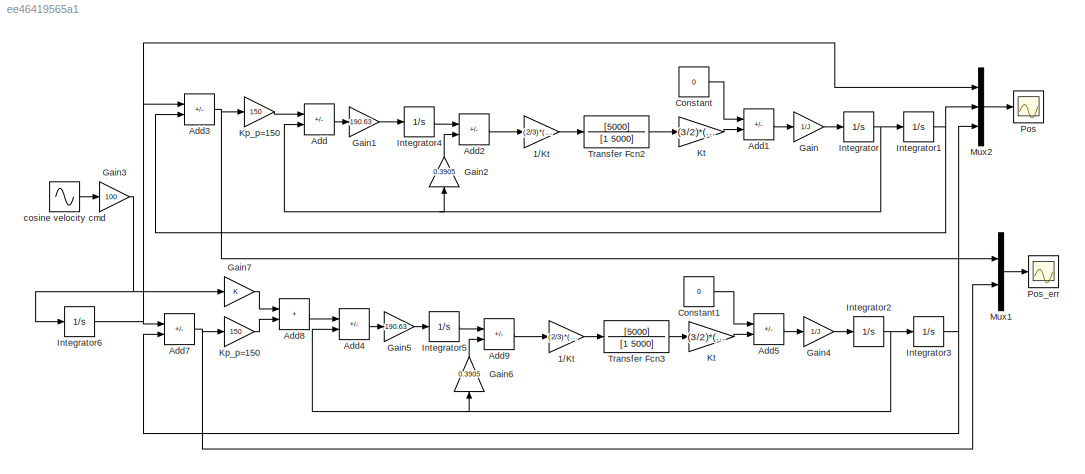
MODEL slx_ee46419565a1
KIND model
CONFIG AbsTol = auto
CONFIG EnableMultiTasking = off
CONFIG FixedStep = auto
CONFIG MaxStep = auto
CONFIG MinStep = auto
CONFIG RelTol = 1e-3
CONFIG SampleTimeConstraint = Unconstrained
CONFIG SolverName = VariableStepAuto
CONFIG StartTime = 0.0
CONFIG StopTime = 2
BLOCK [Gain] 1//Kt 
  Gain = (2/3)*(2/4)*(1/0.03)
BLOCK [Gain] 1//Kt  
  Gain = (2/3)*(2/4)*(1/0.03)
BLOCK [Sum] Add
  IconShape = rectangular
  Inputs = +-
BLOCK [Sum] Add1
  IconShape = rectangular
  Inputs = -+
BLOCK [Sum] Add2
  IconShape = rectangular
  Inputs = +-
BLOCK [Sum] Add3
  IconShape = rectangular
  Inputs = +-
BLOCK [Sum] Add4
  IconShape = rectangular
  Inputs = +-
BLOCK [Sum] Add5
  IconShape = rectangular
  Inputs = -+
BLOCK [Sum] Add7
  IconShape = rectangular
  Inputs = +-
BLOCK [Sum] Add8
  IconShape = rectangular
BLOCK [Sum] Add9
  IconShape = rectangular
  Inputs = +-
BLOCK [Constant] Constant
  Value = 0
BLOCK [Constant] Constant1
  Value = 0
BLOCK [Gain] Gain
  Gain = 1/J
BLOCK [Gain] Gain1
  Gain = 190.63
BLOCK [Gain] Gain2
  Gain = 0.3905
  NameLocation = right
BLOCK [Gain] Gain3
  Gain = 100
BLOCK [Gain] Gain4
  Gain = 1/J
BLOCK [Gain] Gain5
  Gain = 190.63
BLOCK [Gain] Gain6
  Gain = 0.3905
  NameLocation = right
BLOCK [Gain] Gain7
BLOCK [Integrator] Integrator
BLOCK [Integrator] Integrator1
BLOCK [Integrator] Integrator2
BLOCK [Integrator] Integrator3
BLOCK [Integrator] Integrator4
BLOCK [Integrator] Integrator5
BLOCK [Integrator] Integrator6
BLOCK [Gain] Kp_p=150
  Gain = 150
BLOCK [Gain] Kp_p=150 
  Gain = 150
BLOCK [Gain] Kt 
  Gain = (3/2)*(4/2)*0.03
BLOCK [Gain] Kt  
  Gain = (3/2)*(4/2)*0.03
BLOCK [Mux] Mux1
  DisplayOption = bar
  Inputs = 2
BLOCK [Mux] Mux2
  DisplayOption = bar
  Inputs = 3
BLOCK [Scope] Pos
  Floating = off
  NumInputPorts = 1
  ScopeSpecificationString = Simulink.scopes.TimeScopeBlockCfg('CurrentConfiguration', extmgr.ConfigurationSet(extmgr.Configuration('Core','General UI',true,'FigureColor',[1 1 1]),extmgr.Configuration('Core','Source UI',true),extmgr.Configuration('Sources','WiredSimulink',true,'DataLoggingVariableName','ScopeData1'),extmgr.Configuration('Visuals','Time Domain',true,'SerializedDisplays',{struct('MinYLimReal','-1.99912','MaxYLi...<+1958ch>
BLOCK [Scope] Pos_err
  Floating = off
  NumInputPorts = 1
  ScopeSpecificationString = Simulink.scopes.TimeScopeBlockCfg('CurrentConfiguration', extmgr.ConfigurationSet(extmgr.Configuration('Core','General UI',true,'FigureColor',[1 1 1]),extmgr.Configuration('Core','Source UI',true),extmgr.Configuration('Sources','WiredSimulink',true,'DataLoggingVariableName','ScopeData1'),extmgr.Configuration('Visuals','Time Domain',true,'SerializedDisplays',{struct('MinYLimReal','-0.82735','MaxYLi...<+1926ch>
BLOCK [TransferFcn] Transfer Fcn2
  Denominator = [1 5000]
  Numerator = [5000]
BLOCK [TransferFcn] Transfer Fcn3
  Denominator = [1 5000]
  Numerator = [5000]
BLOCK [Sin] cosine velocity cmd
  Frequency = 2*pi*5
  Phase = pi/2
  SampleTime = 0
LINE 1//Kt  :1 -> Transfer Fcn3:1
LINE 1//Kt :1 -> Transfer Fcn2:1
LINE Add1:1 -> Gain:1
LINE Add2:1 -> 1//Kt :1
NET Add3:1 -> Kp_p=150:1, Mux1:1
LINE Add4:1 -> Gain5:1
LINE Add5:1 -> Gain4:1
NET Add7:1 -> Kp_p=150 :1, Mux1:2
LINE Add8:1 -> Add4:1
LINE Add9:1 -> 1//Kt  :1
LINE Add:1 -> Gain1:1
LINE Constant1:1 -> Add5:1
LINE Constant:1 -> Add1:1
LINE Gain1:1 -> Integrator4:1
LINE Gain2:1 -> Add2:2
NET Gain3:1 -> Gain7:1, Integrator6:1
LINE Gain4:1 -> Integrator2:1
LINE Gain5:1 -> Integrator5:1
LINE Gain6:1 -> Add9:2
LINE Gain7:1 -> Add8:1
LINE Gain:1 -> Integrator:1
NET Integrator1:1 -> Add3:2, Mux2:2
NET Integrator2:1 -> Add4:2, Gain6:1, Integrator3:1
NET Integrator3:1 -> Add7:2, Mux2:3
LINE Integrator4:1 -> Add2:1
LINE Integrator5:1 -> Add9:1
NET Integrator6:1 -> Add3:1, Add7:1, Mux2:1
NET Integrator:1 -> Add:2, Gain2:1, Integrator1:1
LINE Kp_p=150 :1 -> Add8:2
LINE Kp_p=150:1 -> Add:1
LINE Kt  :1 -> Add5:2
LINE Kt :1 -> Add1:2
LINE Mux1:1 -> Pos_err:1
LINE Mux2:1 -> Pos:1
LINE Transfer Fcn2:1 -> Kt :1
LINE Transfer Fcn3:1 -> Kt  :1
LINE cosine velocity cmd:1 -> Gain3:1
note: NET lines group one-source signal fan-out (src -> all destinations, sorted); 1:1 wires keep LINE
